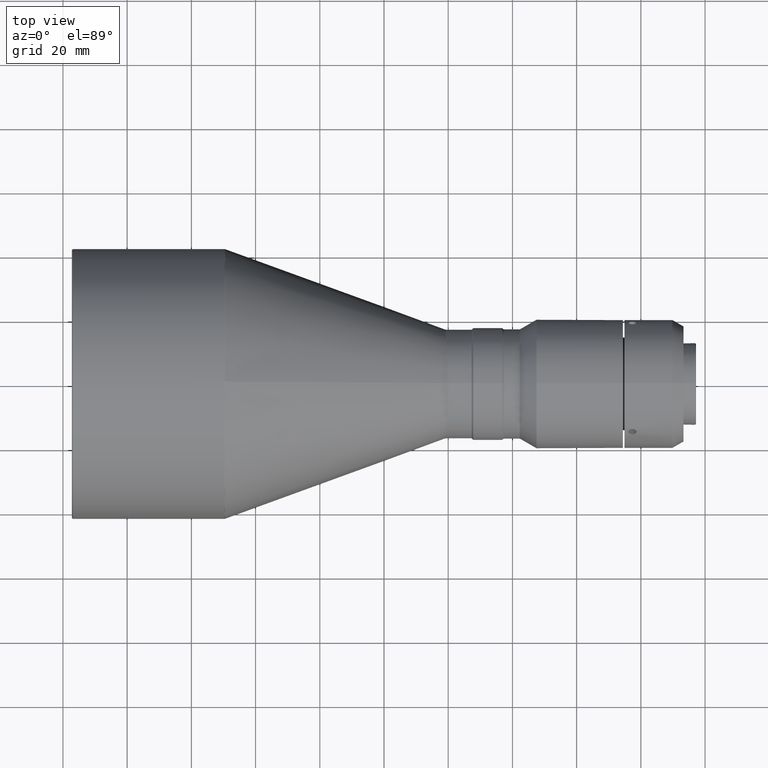
[diagram: clean part render]
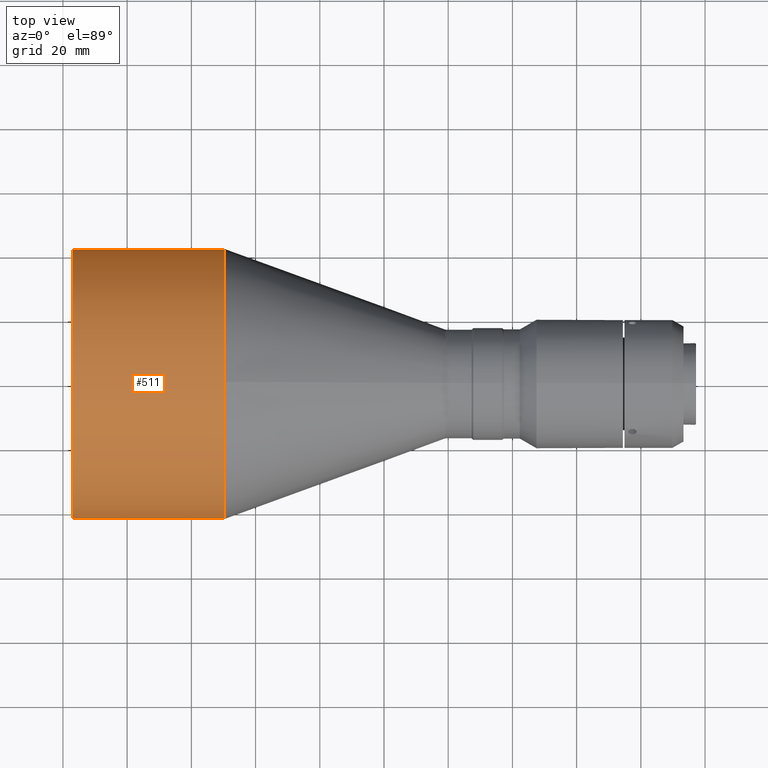
[diagram: same view with one face highlighted and labeled with its STEP entity id]
A machine part, top view. The second image highlights one B-rep face of the part: STEP entity #511.
In plain terms, the highlighted cylindrical surface (partial cylindrical patch) has radius 42 mm, axis along (-1, 0, 0).
Its self-contained STEP definition (entity closure, byte-faithful):
#8 = ORIENTED_EDGE ( 'NONE', *, *, #288, .F. ) ;
#45 = ORIENTED_EDGE ( 'NONE', *, *, #1487, .F. ) ;
#88 = DIRECTION ( 'NONE',  ( 0.0000000000000000000, 0.0000000000000000000, 1.000000000000000000 ) ) ;
#135 = CARTESIAN_POINT ( 'NONE',  ( -49.69644027400000400, 0.0000000000000000000, 0.0000000000000000000 ) ) ;
#175 = DIRECTION ( 'NONE',  ( 1.000000000000000000, -2.478176394250885600E-016, 0.0000000000000000000 ) ) ;
#213 = CARTESIAN_POINT ( 'NONE',  ( -49.69644027324005000, 42.00000000000000000, 5.143516556418883300E-015 ) ) ;
#256 = CARTESIAN_POINT ( 'NONE',  ( -49.69644027343002100, -8.597901537437134200E-031, 41.99999999998096500 ) ) ;
#288 = EDGE_CURVE ( 'NONE', #453, #1177, #300, .T. ) ;
#300 = CIRCLE ( 'NONE', #1236, 41.99999999997461900 ) ;
#313 = DIRECTION ( 'NONE',  ( 1.000000000000000000, 2.478176394250885600E-016, 0.0000000000000000000 ) ) ;
#389 = CIRCLE ( 'NONE', #869, 41.99999999999999300 ) ;
#408 = CIRCLE ( 'NONE', #460, 41.99999999997461900 ) ;
#453 = VERTEX_POINT ( 'NONE', #256 ) ;
#460 = AXIS2_PLACEMENT_3D ( 'NONE', #1274, #175, #1020 ) ;
#503 = ORIENTED_EDGE ( 'NONE', *, *, #830, .F. ) ;
#511 = ADVANCED_FACE ( 'NONE', ( #1410 ), #885, .T. ) ;
#560 = CARTESIAN_POINT ( 'NONE',  ( -96.90000000000002000, -42.00000000000000000, 5.143516556418883300E-015 ) ) ;
#590 = ORIENTED_EDGE ( 'NONE', *, *, #924, .T. ) ;
#597 = DIRECTION ( 'NONE',  ( -1.000000000000000000, 8.260587980841938800E-017, 0.0000000000000000000 ) ) ;
#665 = ORIENTED_EDGE ( 'NONE', *, *, #1510, .F. ) ;
#686 = DIRECTION ( 'NONE',  ( -1.000000000000000000, 8.260587980841938800E-017, 0.0000000000000000000 ) ) ;
#702 = CARTESIAN_POINT ( 'NONE',  ( -49.69644027400001100, -42.00000000000000000, 0.0000000000000000000 ) ) ;
#706 = VECTOR ( 'NONE', #597, 1000.000000000000000 ) ;
#796 = AXIS2_PLACEMENT_3D ( 'NONE', #135, #1477, #1230 ) ;
#817 = CARTESIAN_POINT ( 'NONE',  ( -49.69644027324005700, 0.0000000000000000000, 0.0000000000000000000 ) ) ;
#818 = LINE ( 'NONE', #1461, #706 ) ;
#830 = EDGE_CURVE ( 'NONE', #1177, #1109, #1243, .T. ) ;
#869 = AXIS2_PLACEMENT_3D ( 'NONE', #937, #1025, #88 ) ;
#885 = CYLINDRICAL_SURFACE ( 'NONE', #796, 42.00000000000000000 ) ;
#924 = EDGE_CURVE ( 'NONE', #1206, #1189, #818, .T. ) ;
#937 = CARTESIAN_POINT ( 'NONE',  ( -96.90000000000002000, 0.0000000000000000000, 0.0000000000000000000 ) ) ;
#984 = CARTESIAN_POINT ( 'NONE',  ( -49.69644027324005000, -42.00000000000000000, 0.0000000000000000000 ) ) ;
#1020 = DIRECTION ( 'NONE',  ( 1.652117596169386200E-016, 1.000000000000000000, 0.0000000000000000000 ) ) ;
#1025 = DIRECTION ( 'NONE',  ( -1.000000000000000000, 0.0000000000000000000, 0.0000000000000000000 ) ) ;
#1109 = VERTEX_POINT ( 'NONE', #560 ) ;
#1177 = VERTEX_POINT ( 'NONE', #984 ) ;
#1186 = DIRECTION ( 'NONE',  ( -1.652117596169386200E-016, 1.000000000000000000, 0.0000000000000000000 ) ) ;
#1189 = VERTEX_POINT ( 'NONE', #1567 ) ;
#1205 = VECTOR ( 'NONE', #686, 1000.000000000000000 ) ;
#1206 = VERTEX_POINT ( 'NONE', #213 ) ;
#1209 = EDGE_LOOP ( 'NONE', ( #45, #590, #665, #503, #8 ) ) ;
#1230 = DIRECTION ( 'NONE',  ( -1.652117596168387800E-016, -1.000000000000000000, 0.0000000000000000000 ) ) ;
#1236 = AXIS2_PLACEMENT_3D ( 'NONE', #817, #313, #1186 ) ;
#1243 = LINE ( 'NONE', #702, #1205 ) ;
#1274 = CARTESIAN_POINT ( 'NONE',  ( -49.69644027324005700, 0.0000000000000000000, 0.0000000000000000000 ) ) ;
#1410 = FACE_OUTER_BOUND ( 'NONE', #1209, .T. ) ;
#1461 = CARTESIAN_POINT ( 'NONE',  ( -49.69644027399999700, 42.00000000000000000, 5.143516556418883300E-015 ) ) ;
#1477 = DIRECTION ( 'NONE',  ( -1.000000000000000000, 8.260587980841938800E-017, 0.0000000000000000000 ) ) ;
#1487 = EDGE_CURVE ( 'NONE', #1206, #453, #408, .T. ) ;
#1510 = EDGE_CURVE ( 'NONE', #1109, #1189, #389, .T. ) ;
#1567 = CARTESIAN_POINT ( 'NONE',  ( -96.90000000000002000, 42.00000000000000000, 0.0000000000000000000 ) ) ;